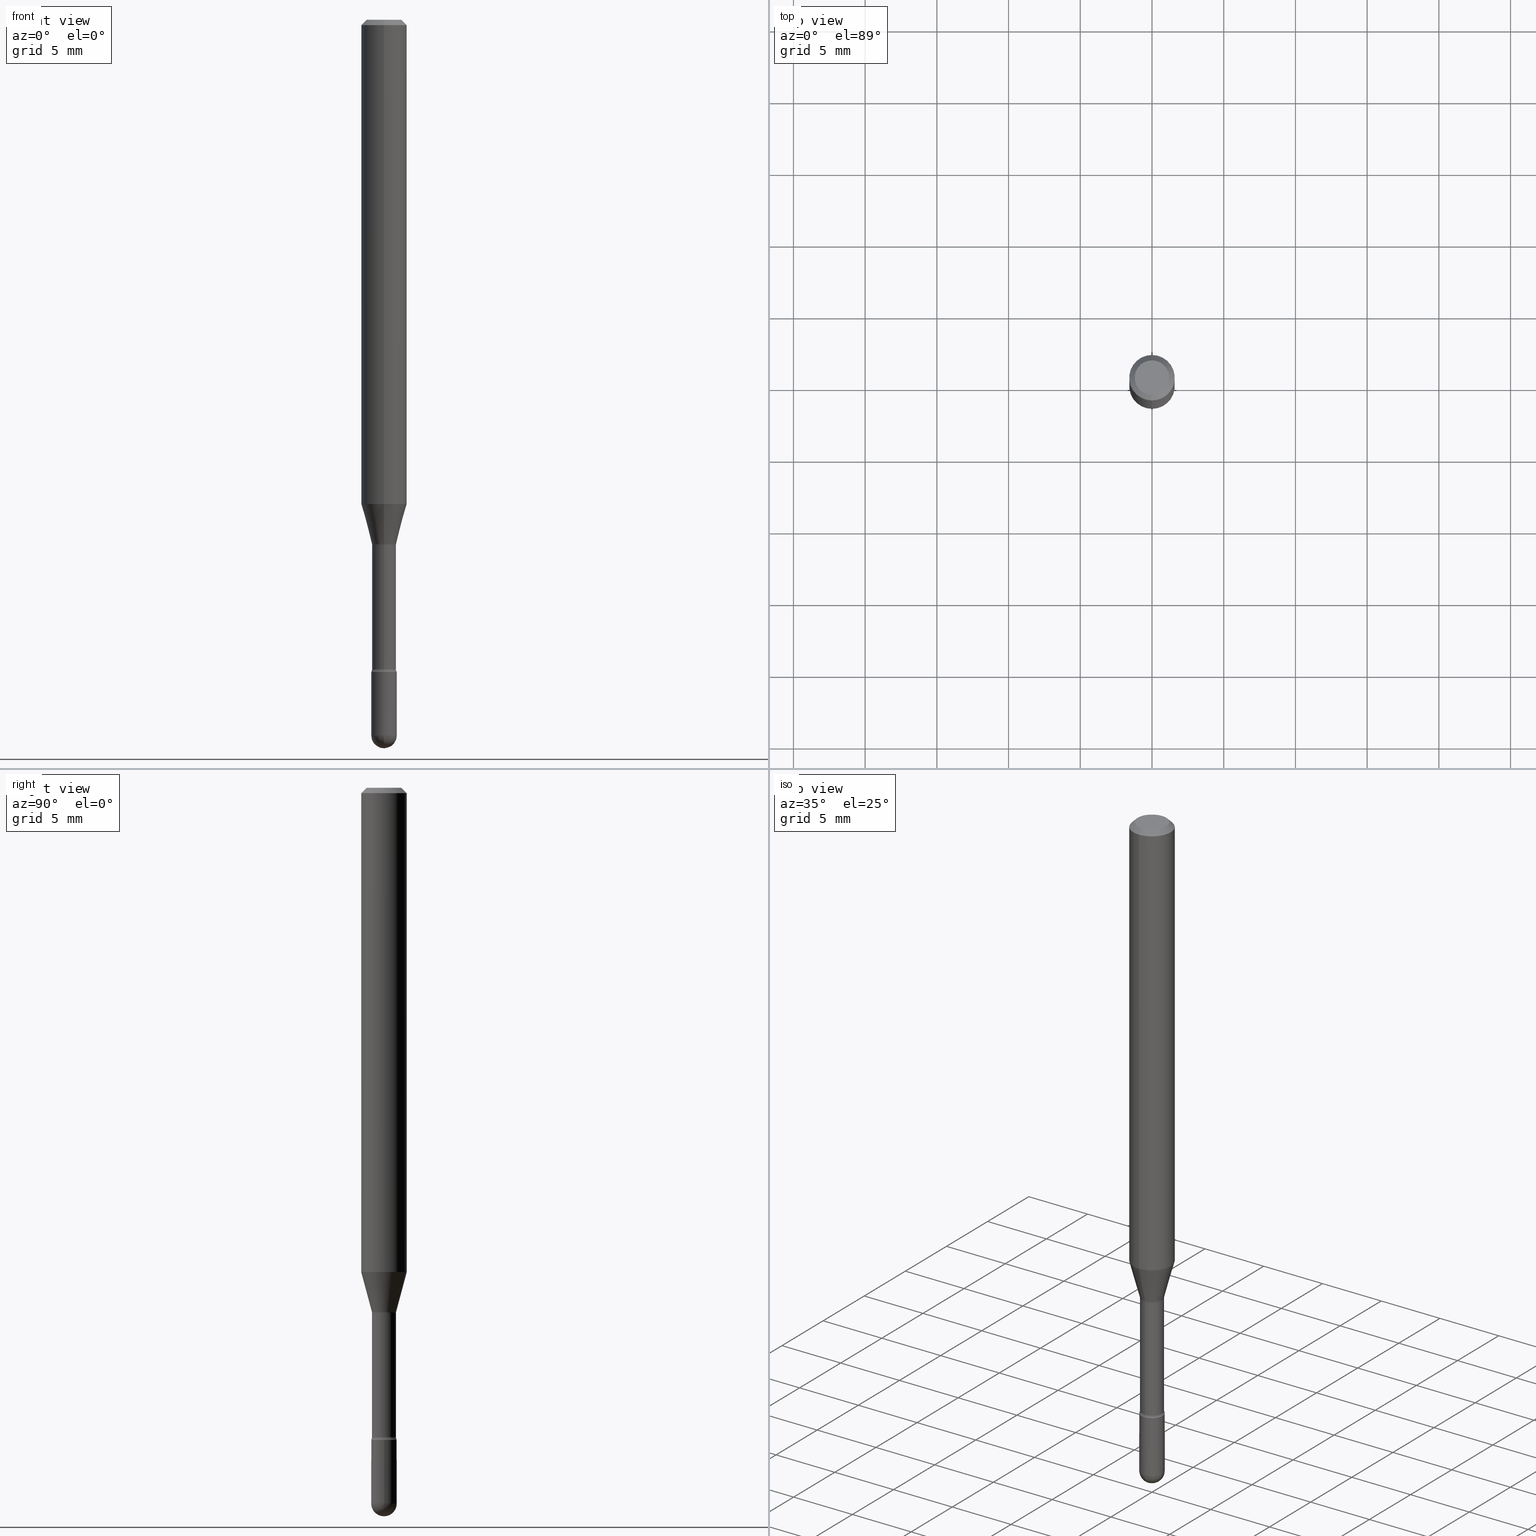
[diagram: canonical four-view strip — front | top / right | iso, engineering-drawing reading convention]
A machine part, canonical four-view strip (front | top / right | iso — engineering-drawing reading convention). The complete STEP part file that produces these views, byte-faithful:
ISO-10303-21;
HEADER;
FILE_DESCRIPTION (( 'STEP AP203' ),
    '1' );
FILE_NAME ('09815.STEP',
    '2024-04-10T01:44:51',
    ( '' ),
    ( '' ),
    'SwSTEP 2.0',
    'SolidWorks 2023',
    '' );
FILE_SCHEMA (( 'CONFIG_CONTROL_DESIGN' ));
ENDSEC;

DATA;
#1 = CARTESIAN_POINT ( 'NONE',  ( -1.169113584055446105E-44, 1.669184350826100908E-30, 4.780733988912460139E-16 ) ) ;
#2 = DATE_AND_TIME ( #399, #466 ) ;
#3 = ADVANCED_FACE ( 'NONE', ( #76 ), #390, .T. ) ;
#4 = SHAPE_DEFINITION_REPRESENTATION ( #303, #479 ) ;
#5 = CC_DESIGN_PERSON_AND_ORGANIZATION_ASSIGNMENT ( #445, #321, ( #372 ) ) ;
#6 = ORIENTED_EDGE ( 'NONE', *, *, #102, .F. ) ;
#7 = CIRCLE ( 'NONE', #554, 0.01500000000000001853 ) ;
#8 = CARTESIAN_POINT ( 'NONE',  ( 3.516851881885144057E-29, -5.021013662551617975E-15, -1.438092501787273658 ) ) ;
#9 = COORDINATED_UNIVERSAL_TIME_OFFSET ( 5, 0, .BEHIND. ) ;
#10 = DIRECTION ( 'NONE',  ( 1.000000000000000000, -7.105427357601001070E-15, 4.926315002100865368E-29 ) ) ;
#11 = ORIENTED_EDGE ( 'NONE', *, *, #199, .T. ) ;
#12 = PRODUCT_DEFINITION ( 'UNKNOWN', '', #409, #48 ) ;
#13 = DIRECTION ( 'NONE',  ( -4.851104656540964275E-15, -0.7071067811865500152, -0.7071067811865450192 ) ) ;
#14 = VERTEX_POINT ( 'NONE', #250 ) ;
#15 = CIRCLE ( 'NONE', #400, 0.01500000000000001853 ) ;
#16 = PRODUCT_RELATED_PRODUCT_CATEGORY ( 'detail', '', ( #424 ) ) ;
#17 = FACE_OUTER_BOUND ( 'NONE', #404, .T. ) ;
#18 = ORIENTED_EDGE ( 'NONE', *, *, #529, .T. ) ;
#19 = CALENDAR_DATE ( 2024, 9, 4 ) ;
#20 = DIRECTION ( 'NONE',  ( 2.445497683573463397E-29, -3.491439984779462686E-15, -1.000000000000000000 ) ) ;
#21 = ADVANCED_FACE ( 'NONE', ( #68 ), #495, .F. ) ;
#22 = EDGE_LOOP ( 'NONE', ( #323, #313, #511, #234 ) ) ;
#23 = FACE_OUTER_BOUND ( 'NONE', #474, .T. ) ;
#24 = VERTEX_POINT ( 'NONE', #345 ) ;
#25 = CIRCLE ( 'NONE', #164, 0.03500000000000000333 ) ;
#26 = DIRECTION ( 'NONE',  ( -2.445497683573463397E-29, 3.491439984779462686E-15, 1.000000000000000000 ) ) ;
#27 = CARTESIAN_POINT ( 'NONE',  ( 3.316907271900976096E-16, 0.04749999999999999362, 3.181880197381339971E-17 ) ) ;
#28 = CARTESIAN_POINT ( 'NONE',  ( 4.364351673553919652E-16, 0.06249999999999995143, -0.01500000000000030129 ) ) ;
#29 = ORIENTED_EDGE ( 'NONE', *, *, #86, .T. ) ;
#30 = APPLICATION_CONTEXT ( 'configuration controlled 3d designs of mechanical parts and assemblies' ) ;
#31 = LINE ( 'NONE', #344, #163 ) ;
#32 = AXIS2_PLACEMENT_3D ( 'NONE', #97, #453, #316 ) ;
#33 = ORIENTED_EDGE ( 'NONE', *, *, #165, .F. ) ;
#34 = DIRECTION ( 'NONE',  ( -2.445468806185136597E-29, 3.491481338843145583E-15, 1.000000000000000000 ) ) ;
#35 = ADVANCED_FACE ( 'NONE', ( #238 ), #398, .F. ) ;
#36 = APPROVAL_DATE_TIME ( #44, #411 ) ;
#37 = CARTESIAN_POINT ( 'NONE',  ( 4.377389163071394665E-29, -6.249751596529231267E-15, -1.790000000000000036 ) ) ;
#38 = CIRCLE ( 'NONE', #536, 0.03500000000000000333 ) ;
#39 = SECURITY_CLASSIFICATION_LEVEL ( 'unclassified' ) ;
#40 = CARTESIAN_POINT ( 'NONE',  ( 0.000000000000000000, 0.000000000000000000, 0.000000000000000000 ) ) ;
#41 = ORIENTED_EDGE ( 'NONE', *, *, #537, .F. ) ;
#42 = PERSON ( 'UNSPECIFIED', 'UNSPECIFIED', 'UNSPECIFIED', ('UNSPECIFIED'), ('UNSPECIFIED'), ('UNSPECIFIED') ) ;
#43 = EDGE_LOOP ( 'NONE', ( #364, #538, #209, #134 ) ) ;
#44 = DATE_AND_TIME ( #482, #254 ) ;
#45 = DIRECTION ( 'NONE',  ( 1.000000000000000000, -6.982962677686265922E-15, 4.876176775795935793E-29 ) ) ;
#46 = ADVANCED_FACE ( 'NONE', ( #162 ), #519, .T. ) ;
#47 = AXIS2_PLACEMENT_3D ( 'NONE', #207, #202, #551 ) ;
#48 = DESIGN_CONTEXT ( 'detailed design', #505, 'design' ) ;
#49 = AXIS2_PLACEMENT_3D ( 'NONE', #415, #368, #193 ) ;
#50 = ADVANCED_FACE ( 'NONE', ( #346 ), #229, .T. ) ;
#51 = EDGE_LOOP ( 'NONE', ( #405, #277, #374, #370 ) ) ;
#52 = DIRECTION ( 'NONE',  ( -2.445497683573463397E-29, 3.491439984779462686E-15, 1.000000000000000000 ) ) ;
#53 = ORIENTED_EDGE ( 'NONE', *, *, #259, .T. ) ;
#54 = DIRECTION ( 'NONE',  ( -2.445497683573463397E-29, 3.491439984779462686E-15, 1.000000000000000000 ) ) ;
#55 = ORIENTED_EDGE ( 'NONE', *, *, #433, .F. ) ;
#56 = CIRCLE ( 'NONE', #341, 0.03500000000000000333 ) ;
#57 = EDGE_CURVE ( 'NONE', #92, #367, #436, .T. ) ;
#58 = DIRECTION ( 'NONE',  ( -6.982962677686265922E-15, -1.000000000000000000, 0.000000000000000000 ) ) ;
#59 = EDGE_LOOP ( 'NONE', ( #33, #270, #546, #452 ) ) ;
#60 = CARTESIAN_POINT ( 'NONE',  ( -4.364351673553592768E-16, -0.06250000000000467681, -1.329531296095961101 ) ) ;
#61 = VERTEX_POINT ( 'NONE', #156 ) ;
#62 = CARTESIAN_POINT ( 'NONE',  ( 2.444036937190673962E-16, 0.03499999999999315464, -1.964999999999999858 ) ) ;
#63 = ORIENTED_EDGE ( 'NONE', *, *, #395, .F. ) ;
#64 = MANIFOLD_SOLID_BREP ( 'Body-Move/Copy2[2]', #307 ) ;
#65 = AXIS2_PLACEMENT_3D ( 'NONE', #471, #73, #247 ) ;
#66 = CARTESIAN_POINT ( 'NONE',  ( 4.805346204153793345E-29, -6.860760830826780393E-15, -1.964999999999999858 ) ) ;
#67 = VECTOR ( 'NONE', #13, 39.37007874015748143 ) ;
#68 = FACE_OUTER_BOUND ( 'NONE', #22, .T. ) ;
#69 = EDGE_CURVE ( 'NONE', #410, #367, #369, .T. ) ;
#70 = FACE_OUTER_BOUND ( 'NONE', #310, .T. ) ;
#71 = DIRECTION ( 'NONE',  ( -6.982962677686266711E-15, -1.000000000000000000, 0.000000000000000000 ) ) ;
#72 = EDGE_LOOP ( 'NONE', ( #429, #284 ) ) ;
#73 = DIRECTION ( 'NONE',  ( -2.445497683573463397E-29, 3.491439984779462686E-15, 1.000000000000000000 ) ) ;
#74 = CARTESIAN_POINT ( 'NONE',  ( 2.486899575160789198E-16, 0.03499999999999375833, -1.790000000000000258 ) ) ;
#75 = CARTESIAN_POINT ( 'NONE',  ( 4.805346204153793345E-29, -6.860760830826780393E-15, -1.964999999999999858 ) ) ;
#76 = FACE_OUTER_BOUND ( 'NONE', #150, .T. ) ;
#77 = CARTESIAN_POINT ( 'NONE',  ( 4.377389163071394665E-29, -6.249751596529231267E-15, -1.790000000000000036 ) ) ;
#78 = ADVANCED_FACE ( 'NONE', ( #194 ), #223, .F. ) ;
#79 = AXIS2_PLACEMENT_3D ( 'NONE', #27, #158, #491 ) ;
#80 = CARTESIAN_POINT ( 'NONE',  ( 3.251365704841097934E-29, -4.641978728205103183E-15, -1.329531296095961546 ) ) ;
#81 = CARTESIAN_POINT ( 'NONE',  ( 4.358722010466005313E-29, -6.222952657899001696E-15, -1.782345589506696193 ) ) ;
#82 = CARTESIAN_POINT ( 'NONE',  ( 4.892434153376336703E-29, -6.980819545787783111E-15, -2.000000000000000000 ) ) ;
#83 = PLANE ( 'NONE',  #252 ) ;
#84 = AXIS2_PLACEMENT_3D ( 'NONE', #1, #545, #182 ) ;
#85 = LOCAL_TIME ( 21, 44, 51.00000000000000000, #124 ) ;
#86 = EDGE_CURVE ( 'NONE', #443, #130, #544, .T. ) ;
#87 = DIRECTION ( 'NONE',  ( -2.445497683573463397E-29, 3.491439984779462686E-15, 1.000000000000000000 ) ) ;
#88 = PERSON_AND_ORGANIZATION ( #42, #380 ) ;
#89 = CARTESIAN_POINT ( 'NONE',  ( -2.297394720958349133E-16, -0.03290000000000627145, -1.782345589506696193 ) ) ;
#90 = EDGE_CURVE ( 'NONE', #106, #130, #383, .T. ) ;
#91 = DIRECTION ( 'NONE',  ( 1.000000000000000000, -6.982962677686265922E-15, 4.876176775795936353E-29 ) ) ;
#92 = VERTEX_POINT ( 'NONE', #82 ) ;
#93 = AXIS2_PLACEMENT_3D ( 'NONE', #153, #425, #336 ) ;
#94 = EDGE_LOOP ( 'NONE', ( #439, #188, #29, #174 ) ) ;
#95 = ORIENTED_EDGE ( 'NONE', *, *, #337, .T. ) ;
#96 = ADVANCED_FACE ( 'NONE', ( #347 ), #514, .T. ) ;
#97 = CARTESIAN_POINT ( 'NONE',  ( 4.377440853596499335E-29, -6.249677572755238571E-15, -1.790000000000000036 ) ) ;
#98 = VERTEX_POINT ( 'NONE', #430 ) ;
#99 = AXIS2_PLACEMENT_3D ( 'NONE', #114, #377, #147 ) ;
#100 = LINE ( 'NONE', #500, #487 ) ;
#101 = VERTEX_POINT ( 'NONE', #562 ) ;
#102 = EDGE_CURVE ( 'NONE', #477, #106, #523, .T. ) ;
#103 = ORIENTED_EDGE ( 'NONE', *, *, #472, .F. ) ;
#104 = EDGE_CURVE ( 'NONE', #101, #535, #190, .T. ) ;
#105 = CARTESIAN_POINT ( 'NONE',  ( -2.333085523452890459E-16, -0.03341111260566893143, -1.438092501787273658 ) ) ;
#106 = VERTEX_POINT ( 'NONE', #393 ) ;
#107 = FACE_OUTER_BOUND ( 'NONE', #413, .T. ) ;
#108 = AXIS2_PLACEMENT_3D ( 'NONE', #135, #449, #412 ) ;
#109 = CC_DESIGN_APPROVAL ( #463, ( #12 ) ) ;
#110 = DIRECTION ( 'NONE',  ( -2.445468806185136877E-29, 3.491481338843145188E-15, 1.000000000000000000 ) ) ;
#111 = DIRECTION ( 'NONE',  ( 1.839019923739594793E-15, 0.2588190451025241812, 0.9659258262890673130 ) ) ;
#112 = LINE ( 'NONE', #28, #224 ) ;
#113 = DIRECTION ( 'NONE',  ( -2.445497683573463117E-29, 3.491439984779462686E-15, 1.000000000000000000 ) ) ;
#114 = CARTESIAN_POINT ( 'NONE',  ( 4.805346204153793345E-29, -6.860760830826780393E-15, -1.964999999999999858 ) ) ;
#115 = APPROVAL_ROLE ( '' ) ;
#116 = TOROIDAL_SURFACE ( 'NONE', #191, 0.04789999999999999813, 0.01500000000000001506 ) ;
#117 = EDGE_LOOP ( 'NONE', ( #331, #218, #246, #144 ) ) ;
#118 = CARTESIAN_POINT ( 'NONE',  ( 2.374002335562071771E-16, 0.03341111260565889085, -1.438092501787273658 ) ) ;
#119 = LINE ( 'NONE', #125, #420 ) ;
#120 = FACE_OUTER_BOUND ( 'NONE', #275, .T. ) ;
#121 = DIRECTION ( 'NONE',  ( -2.445497683573463397E-29, 3.491439984779462686E-15, 1.000000000000000000 ) ) ;
#122 = AXIS2_PLACEMENT_3D ( 'NONE', #258, #245, #242 ) ;
#123 = CC_DESIGN_APPROVAL ( #205, ( #372 ) ) ;
#124 = COORDINATED_UNIVERSAL_TIME_OFFSET ( 5, 0, .BEHIND. ) ;
#125 = CARTESIAN_POINT ( 'NONE',  ( 0.03500000000000000333, -2.444036937190193250E-16, 1.706661871528577808E-30 ) ) ;
#126 = ADVANCED_FACE ( 'NONE', ( #167 ), #175, .T. ) ;
#127 = CARTESIAN_POINT ( 'NONE',  ( -4.364351673553916201E-16, -0.06250000000000000000, 6.962883979399624318E-16 ) ) ;
#128 = APPROVAL_DATE_TIME ( #137, #205 ) ;
#129 = CARTESIAN_POINT ( 'NONE',  ( 3.668246525360215467E-31, -5.237159977169223045E-17, -0.01500000000000008271 ) ) ;
#130 = VERTEX_POINT ( 'NONE', #212 ) ;
#131 = AXIS2_PLACEMENT_3D ( 'NONE', #200, #516, #149 ) ;
#132 = AXIS2_PLACEMENT_3D ( 'NONE', #80, #343, #146 ) ;
#133 = ADVANCED_FACE ( 'NONE', ( #208 ), #378, .F. ) ;
#134 = ORIENTED_EDGE ( 'NONE', *, *, #305, .F. ) ;
#135 = CARTESIAN_POINT ( 'NONE',  ( 0.000000000000000000, 0.000000000000000000, 0.000000000000000000 ) ) ;
#136 = ORIENTED_EDGE ( 'NONE', *, *, #280, .F. ) ;
#137 = DATE_AND_TIME ( #533, #240 ) ;
#138 = DIRECTION ( 'NONE',  ( 7.105427357601001859E-15, 1.000000000000000000, 0.000000000000000000 ) ) ;
#139 = ORIENTED_EDGE ( 'NONE', *, *, #165, .T. ) ;
#140 = AXIS2_PLACEMENT_3D ( 'NONE', #75, #403, #232 ) ;
#141 = EDGE_CURVE ( 'NONE', #130, #443, #239, .T. ) ;
#142 = CIRCLE ( 'NONE', #269, 0.03341111260566390767 ) ;
#143 = PERSON_AND_ORGANIZATION ( #42, #380 ) ;
#144 = ORIENTED_EDGE ( 'NONE', *, *, #333, .F. ) ;
#145 = EDGE_CURVE ( 'NONE', #410, #492, #31, .T. ) ;
#146 = DIRECTION ( 'NONE',  ( -6.982962677686265922E-15, -1.000000000000000000, 4.370956789862821150E-15 ) ) ;
#147 = DIRECTION ( 'NONE',  ( 6.982962677686265922E-15, 1.000000000000000000, 0.000000000000000000 ) ) ;
#148 = PERSON_AND_ORGANIZATION ( #42, #380 ) ;
#149 = DIRECTION ( 'NONE',  ( -6.982962677686265922E-15, -1.000000000000000000, 3.491439984779462292E-15 ) ) ;
#150 = EDGE_LOOP ( 'NONE', ( #6, #213, #11, #41 ) ) ;
#151 = VECTOR ( 'NONE', #111, 39.37007874015748854 ) ;
#152 = AXIS2_PLACEMENT_3D ( 'NONE', #397, #121, #308 ) ;
#153 = CARTESIAN_POINT ( 'NONE',  ( 3.668246525360215467E-31, -5.237159977169223045E-17, -0.01500000000000008271 ) ) ;
#154 = DIRECTION ( 'NONE',  ( -6.982962677686265922E-15, -1.000000000000000000, 3.483106191921935554E-15 ) ) ;
#155 = CARTESIAN_POINT ( 'NONE',  ( 3.526304362048192117E-29, -5.034628061512207584E-15, -1.441974787463811136 ) ) ;
#156 = CARTESIAN_POINT ( 'NONE',  ( -3.773273898774340269E-16, -0.04749999999999999362, 8.309440288745416751E-17 ) ) ;
#157 = DIRECTION ( 'NONE',  ( 0.000000000000000000, 0.000000000000000000, 1.000000000000000000 ) ) ;
#158 = DIRECTION ( 'NONE',  ( 2.445497683573463117E-29, -3.491439984779462686E-15, -1.000000000000000000 ) ) ;
#159 = DIRECTION ( 'NONE',  ( -6.982962677686265922E-15, -1.000000000000000000, 3.491439984779462292E-15 ) ) ;
#160 = DIRECTION ( 'NONE',  ( -2.445497683573463397E-29, 3.491439984779462686E-15, 1.000000000000000000 ) ) ;
#161 = CARTESIAN_POINT ( 'NONE',  ( 3.668246525360215467E-31, -5.237159977169223045E-17, -0.01500000000000008271 ) ) ;
#162 = FACE_OUTER_BOUND ( 'NONE', #43, .T. ) ;
#163 = VECTOR ( 'NONE', #110, 39.37007874015748143 ) ;
#164 = AXIS2_PLACEMENT_3D ( 'NONE', #66, #34, #428 ) ;
#165 = EDGE_CURVE ( 'NONE', #24, #282, #557, .T. ) ;
#166 = DIRECTION ( 'NONE',  ( -2.445468806185136597E-29, 3.491481338843145583E-15, 1.000000000000000000 ) ) ;
#167 = FACE_OUTER_BOUND ( 'NONE', #236, .T. ) ;
#168 = VERTEX_POINT ( 'NONE', #563 ) ;
#169 = CARTESIAN_POINT ( 'NONE',  ( 2.337685600651166350E-16, 0.03289999999999496105, -1.441974787463811136 ) ) ;
#170 = AXIS2_PLACEMENT_3D ( 'NONE', #497, #227, #187 ) ;
#171 = ADVANCED_FACE ( 'NONE', ( #334 ), #296, .T. ) ;
#172 = DIRECTION ( 'NONE',  ( -6.982962677686265922E-15, -1.000000000000000000, 0.000000000000000000 ) ) ;
#173 = CARTESIAN_POINT ( 'NONE',  ( 3.516851881885144057E-29, -5.021013662551617975E-15, -1.438092501787273658 ) ) ;
#174 = ORIENTED_EDGE ( 'NONE', *, *, #506, .F. ) ;
#175 = CYLINDRICAL_SURFACE ( 'NONE', #131, 0.06250000000000000000 ) ;
#176 = CIRCLE ( 'NONE', #122, 0.04749999999999999362 ) ;
#177 = ORIENTED_EDGE ( 'NONE', *, *, #104, .T. ) ;
#178 = CIRCLE ( 'NONE', #435, 0.03290000000000004726 ) ;
#179 = AXIS2_PLACEMENT_3D ( 'NONE', #385, #381, #373 ) ;
#180 = APPROVAL_PERSON_ORGANIZATION ( #143, #205, #184 ) ;
#181 = EDGE_CURVE ( 'NONE', #24, #325, #178, .T. ) ;
#182 = DIRECTION ( 'NONE',  ( -6.982962677686265922E-15, -1.000000000000000000, 3.491439984779462292E-15 ) ) ;
#183 = VERTEX_POINT ( 'NONE', #206 ) ;
#184 = APPROVAL_ROLE ( '' ) ;
#185 = CARTESIAN_POINT ( 'NONE',  ( 3.251365704841097934E-29, -4.641978728205103183E-15, -1.329531296095961546 ) ) ;
#186 = VERTEX_POINT ( 'NONE', #509 ) ;
#187 = DIRECTION ( 'NONE',  ( 7.105427357600998703E-15, 1.000000000000000000, 0.000000000000000000 ) ) ;
#188 = ORIENTED_EDGE ( 'NONE', *, *, #426, .T. ) ;
#189 = EDGE_CURVE ( 'NONE', #183, #61, #176, .T. ) ;
#190 = CIRCLE ( 'NONE', #65, 0.03500000000000000333 ) ;
#191 = AXIS2_PLACEMENT_3D ( 'NONE', #422, #547, #289 ) ;
#192 =( GEOMETRIC_REPRESENTATION_CONTEXT ( 3 ) GLOBAL_UNCERTAINTY_ASSIGNED_CONTEXT ( ( #294 ) ) GLOBAL_UNIT_ASSIGNED_CONTEXT ( ( #295, #299, #248 ) ) REPRESENTATION_CONTEXT ( 'NONE', 'WORKASPACE' ) );
#193 = DIRECTION ( 'NONE',  ( -6.982962677686266711E-15, -1.000000000000000000, 3.491439984779464658E-15 ) ) ;
#194 = FACE_OUTER_BOUND ( 'NONE', #498, .T. ) ;
#195 = DIRECTION ( 'NONE',  ( -2.445468806185136597E-29, 3.491481338843145583E-15, 1.000000000000000000 ) ) ;
#196 = ORIENTED_EDGE ( 'NONE', *, *, #181, .F. ) ;
#197 = DIRECTION ( 'NONE',  ( -2.445497683573463397E-29, 3.491439984779462686E-15, 1.000000000000000000 ) ) ;
#198 = CARTESIAN_POINT ( 'NONE',  ( -0.03500000000000000333, -6.306566256161970939E-15, -1.790000000000000036 ) ) ;
#199 = EDGE_CURVE ( 'NONE', #168, #484, #432, .T. ) ;
#200 = CARTESIAN_POINT ( 'NONE',  ( -1.169113584055446105E-44, 1.669184350826100908E-30, 4.780733988912460139E-16 ) ) ;
#201 = DIRECTION ( 'NONE',  ( -2.445497683573463397E-29, 3.491439984779462686E-15, 1.000000000000000000 ) ) ;
#202 = DIRECTION ( 'NONE',  ( -2.445497683573463397E-29, 3.491439984779462686E-15, 1.000000000000000000 ) ) ;
#203 = CLOSED_SHELL ( 'NONE', ( #221, #171, #326, #46, #442 ) ) ;
#204 = AXIS2_PLACEMENT_3D ( 'NONE', #396, #302, #483 ) ;
#205 = APPROVAL ( #271, 'UNSPECIFIED' ) ;
#206 = CARTESIAN_POINT ( 'NONE',  ( 3.840629472727447874E-16, 0.04749999999999999362, -2.485923956665947374E-16 ) ) ;
#207 = CARTESIAN_POINT ( 'NONE',  ( 3.668246525360215467E-31, -5.237159977169223045E-17, -0.01500000000000008271 ) ) ;
#208 = FACE_OUTER_BOUND ( 'NONE', #72, .T. ) ;
#209 = ORIENTED_EDGE ( 'NONE', *, *, #549, .F. ) ;
#210 = CARTESIAN_POINT ( 'NONE',  ( 4.358670540980284355E-29, -6.223026365132014624E-15, -1.782345589506696193 ) ) ;
#211 = ADVANCED_FACE ( 'NONE', ( #461 ), #376, .F. ) ;
#212 = CARTESIAN_POINT ( 'NONE',  ( 4.440892098500952553E-16, 0.06249999999999993755, -0.01500000000000030129 ) ) ;
#213 = ORIENTED_EDGE ( 'NONE', *, *, #401, .T. ) ;
#214 = DIRECTION ( 'NONE',  ( -7.105427357601001859E-15, -1.000000000000000000, 0.000000000000000000 ) ) ;
#215 = PERSON_AND_ORGANIZATION ( #42, #380 ) ;
#216 = FACE_OUTER_BOUND ( 'NONE', #117, .T. ) ;
#217 = CC_DESIGN_APPROVAL ( #411, ( #409 ) ) ;
#218 = ORIENTED_EDGE ( 'NONE', *, *, #90, .T. ) ;
#219 = CARTESIAN_POINT ( 'NONE',  ( 4.377389163071394665E-29, -6.249751596529231267E-15, -1.790000000000000036 ) ) ;
#220 = EDGE_LOOP ( 'NONE', ( #291, #494 ) ) ;
#221 = ADVANCED_FACE ( 'NONE', ( #120 ), #486, .T. ) ;
#222 = FACE_OUTER_BOUND ( 'NONE', #306, .T. ) ;
#223 = TOROIDAL_SURFACE ( 'NONE', #317, 0.04790000000000007446, 0.01500000000000002373 ) ;
#224 = VECTOR ( 'NONE', #473, 39.37007874015748143 ) ;
#225 = DIRECTION ( 'NONE',  ( -2.445468806185136597E-29, 3.491481338843145583E-15, 1.000000000000000000 ) ) ;
#226 = ORIENTED_EDGE ( 'NONE', *, *, #272, .F. ) ;
#227 = DIRECTION ( 'NONE',  ( 1.000000000000000000, -7.105427357601001070E-15, 4.926315002100865368E-29 ) ) ;
#228 = ORIENTED_EDGE ( 'NONE', *, *, #90, .F. ) ;
#229 = CONICAL_SURFACE ( 'NONE', #478, 0.03341111260566390767, 0.2617993877991495189 ) ;
#230 = ORIENTED_EDGE ( 'NONE', *, *, #145, .T. ) ;
#231 = CIRCLE ( 'NONE', #566, 0.01500000000000001853 ) ;
#232 = DIRECTION ( 'NONE',  ( 1.000000000000000000, -6.982962677686276966E-15, 0.000000000000000000 ) ) ;
#233 = CARTESIAN_POINT ( 'NONE',  ( -0.03500000000000000333, -6.306566256161970939E-15, -1.964999999999999858 ) ) ;
#234 = ORIENTED_EDGE ( 'NONE', *, *, #293, .F. ) ;
#235 = CYLINDRICAL_SURFACE ( 'NONE', #49, 0.03290000000000001951 ) ;
#236 = EDGE_LOOP ( 'NONE', ( #228, #339, #243, #379 ) ) ;
#237 = CARTESIAN_POINT ( 'NONE',  ( 3.403499704291320534E-16, 0.04789999999999385027, -1.782345589506696415 ) ) ;
#238 = FACE_OUTER_BOUND ( 'NONE', #459, .T. ) ;
#239 = CIRCLE ( 'NONE', #418, 0.06250000000000000000 ) ;
#240 = LOCAL_TIME ( 21, 44, 51.00000000000000000, #9 ) ;
#241 =( LENGTH_UNIT ( ) NAMED_UNIT ( * ) SI_UNIT ( $, .METRE. ) );
#242 = DIRECTION ( 'NONE',  ( -6.982962677686266711E-15, -1.000000000000000000, 3.491439984779463081E-15 ) ) ;
#243 = ORIENTED_EDGE ( 'NONE', *, *, #333, .T. ) ;
#244 = APPROVAL_STATUS ( 'not_yet_approved' ) ;
#245 = DIRECTION ( 'NONE',  ( -2.445497683573463397E-29, 3.491439984779462686E-15, 1.000000000000000000 ) ) ;
#246 = ORIENTED_EDGE ( 'NONE', *, *, #86, .F. ) ;
#247 = DIRECTION ( 'NONE',  ( -6.982962677686265922E-15, -1.000000000000000000, 0.000000000000000000 ) ) ;
#248 =( NAMED_UNIT ( * ) SI_UNIT ( $, .STERADIAN. ) SOLID_ANGLE_UNIT ( ) );
#249 = DIRECTION ( 'NONE',  ( -2.445497683573463397E-29, 3.491439984779462686E-15, 1.000000000000000000 ) ) ;
#250 = CARTESIAN_POINT ( 'NONE',  ( 0.03500000000000000333, -6.799659907397025402E-15, -1.964999999999999858 ) ) ;
#251 = MANIFOLD_SOLID_BREP ( 'Body-Move/Copy2[1]', #203 ) ;
#252 = AXIS2_PLACEMENT_3D ( 'NONE', #37, #268, #45 ) ;
#253 = DIRECTION ( 'NONE',  ( 1.000000000000000000, -6.982962677686276966E-15, 0.000000000000000000 ) ) ;
#254 = LOCAL_TIME ( 21, 44, 51.00000000000000000, #525 ) ;
#255 = EDGE_CURVE ( 'NONE', #325, #24, #427, .T. ) ;
#256 = ORIENTED_EDGE ( 'NONE', *, *, #506, .T. ) ;
#257 = DIRECTION ( 'NONE',  ( -6.982962677686266711E-15, -1.000000000000000000, 3.491439984779464658E-15 ) ) ;
#258 = CARTESIAN_POINT ( 'NONE',  ( 2.023762844999115351E-45, -2.888933844171342410E-31, -8.274899638957028495E-17 ) ) ;
#259 = EDGE_CURVE ( 'NONE', #419, #410, #56, .T. ) ;
#260 = PERSON_AND_ORGANIZATION_ROLE ( 'creator' ) ;
#261 = AXIS2_PLACEMENT_3D ( 'NONE', #155, #26, #548 ) ;
#262 = PERSON_AND_ORGANIZATION ( #42, #380 ) ;
#263 = VECTOR ( 'NONE', #285, 39.37007874015748854 ) ;
#264 = CONICAL_SURFACE ( 'NONE', #93, 0.06250000000000000000, 0.7853981633974483900 ) ;
#265 = DIRECTION ( 'NONE',  ( 1.000000000000000000, -6.982962677686276966E-15, 0.000000000000000000 ) ) ;
#266 = ORIENTED_EDGE ( 'NONE', *, *, #433, .T. ) ;
#267 = APPROVAL_ROLE ( '' ) ;
#268 = DIRECTION ( 'NONE',  ( -2.438088387897960049E-29, 3.491481338843145188E-15, 1.000000000000000000 ) ) ;
#269 = AXIS2_PLACEMENT_3D ( 'NONE', #173, #502, #58 ) ;
#270 = ORIENTED_EDGE ( 'NONE', *, *, #181, .T. ) ;
#271 = APPROVAL_STATUS ( 'not_yet_approved' ) ;
#272 = EDGE_CURVE ( 'NONE', #98, #282, #371, .T. ) ;
#273 = ORIENTED_EDGE ( 'NONE', *, *, #255, .F. ) ;
#274 = CARTESIAN_POINT ( 'NONE',  ( -2.486899575159870668E-16, -0.03500000000000687284, -1.964999999999999858 ) ) ;
#275 = EDGE_LOOP ( 'NONE', ( #53, #230, #136, #394, #540 ) ) ;
#276 = CC_DESIGN_PERSON_AND_ORGANIZATION_ASSIGNMENT ( #438, #260, ( #409 ) ) ;
#277 = ORIENTED_EDGE ( 'NONE', *, *, #57, .T. ) ;
#278 = CIRCLE ( 'NONE', #32, 0.03500000000000000333 ) ;
#279 = AXIS2_PLACEMENT_3D ( 'NONE', #556, #157, #510 ) ;
#280 = EDGE_CURVE ( 'NONE', #186, #492, #454, .T. ) ;
#281 = CARTESIAN_POINT ( 'NONE',  ( -4.364351673553912750E-16, -0.06250000000000005551, -0.01499999999999986587 ) ) ;
#282 = VERTEX_POINT ( 'NONE', #169 ) ;
#283 = CARTESIAN_POINT ( 'NONE',  ( 2.023762844999115351E-45, -2.888933844171342410E-31, -8.274899638957028495E-17 ) ) ;
#284 = ORIENTED_EDGE ( 'NONE', *, *, #467, .F. ) ;
#285 = DIRECTION ( 'NONE',  ( -1.807323732225324617E-15, -0.2588190451025174088, 0.9659258262890690894 ) ) ;
#286 = DIRECTION ( 'NONE',  ( -6.982962677686265922E-15, -1.000000000000000000, 0.000000000000000000 ) ) ;
#287 = AXIS2_PLACEMENT_3D ( 'NONE', #338, #469, #290 ) ;
#288 = AXIS2_PLACEMENT_3D ( 'NONE', #283, #330, #507 ) ;
#289 = DIRECTION ( 'NONE',  ( -6.982962677686265133E-15, -1.000000000000000000, 3.491439984779462686E-15 ) ) ;
#290 = DIRECTION ( 'NONE',  ( 6.982962677686265922E-15, 1.000000000000000000, 0.000000000000000000 ) ) ;
#291 = ORIENTED_EDGE ( 'NONE', *, *, #189, .T. ) ;
#292 = CARTESIAN_POINT ( 'NONE',  ( 4.440892098500625669E-16, 0.06250000000000000000, 2.598583998425296453E-16 ) ) ;
#293 = EDGE_CURVE ( 'NONE', #168, #98, #231, .T. ) ;
#294 = UNCERTAINTY_MEASURE_WITH_UNIT (LENGTH_MEASURE( 1.000000000000000082E-05 ), #295, 'distance_accuracy_value', 'NONE');
#295 =( CONVERSION_BASED_UNIT ( 'INCH', #460 ) LENGTH_UNIT ( ) NAMED_UNIT ( #384 ) );
#296 = SPHERICAL_SURFACE ( 'NONE', #287, 0.03500000000000001721 ) ;
#297 = ORIENTED_EDGE ( 'NONE', *, *, #300, .T. ) ;
#298 = AXIS2_PLACEMENT_3D ( 'NONE', #355, #87, #434 ) ;
#299 =( NAMED_UNIT ( * ) PLANE_ANGLE_UNIT ( ) SI_UNIT ( $, .RADIAN. ) );
#300 = EDGE_CURVE ( 'NONE', #14, #186, #119, .T. ) ;
#301 = DIRECTION ( 'NONE',  ( -6.982962677686265922E-15, -1.000000000000000000, 3.491439984779462686E-15 ) ) ;
#302 = DIRECTION ( 'NONE',  ( -2.445468806185136597E-29, 3.491481338843145583E-15, 1.000000000000000000 ) ) ;
#303 = PRODUCT_DEFINITION_SHAPE ( 'NONE', 'NONE',  #12 ) ;
#304 = CARTESIAN_POINT ( 'NONE',  ( 4.805346204153793345E-29, -6.860760830826780393E-15, -1.964999999999999858 ) ) ;
#305 = EDGE_CURVE ( 'NONE', #367, #14, #391, .T. ) ;
#306 = EDGE_LOOP ( 'NONE', ( #457, #18 ) ) ;
#307 = CLOSED_SHELL ( 'NONE', ( #21, #490, #35, #458, #361, #50, #3, #126, #542, #211, #133, #78, #96, #512 ) ) ;
#308 = DIRECTION ( 'NONE',  ( -6.982962677686266711E-15, -1.000000000000000000, 0.000000000000000000 ) ) ;
#309 = APPROVAL_PERSON_ORGANIZATION ( #88, #411, #267 ) ;
#310 = EDGE_LOOP ( 'NONE', ( #402, #501, #256, #365 ) ) ;
#311 = APPROVAL_STATUS ( 'not_yet_approved' ) ;
#312 = DIRECTION ( 'NONE',  ( -2.445468806185136877E-29, 3.491481338843145188E-15, 1.000000000000000000 ) ) ;
#313 = ORIENTED_EDGE ( 'NONE', *, *, #406, .T. ) ;
#314 = DIRECTION ( 'NONE',  ( -1.000000000000000000, 6.982962677686265922E-15, -4.883557194083112340E-29 ) ) ;
#315 = ORIENTED_EDGE ( 'NONE', *, *, #337, .F. ) ;
#316 = DIRECTION ( 'NONE',  ( -6.982962677686265922E-15, -1.000000000000000000, 0.000000000000000000 ) ) ;
#317 = AXIS2_PLACEMENT_3D ( 'NONE', #210, #197, #559 ) ;
#318 = AXIS2_PLACEMENT_3D ( 'NONE', #515, #375, #332 ) ;
#319 = ORIENTED_EDGE ( 'NONE', *, *, #272, .T. ) ;
#320 = CC_DESIGN_SECURITY_CLASSIFICATION ( #372, ( #409 ) ) ;
#321 = PERSON_AND_ORGANIZATION_ROLE ( 'classification_officer' ) ;
#322 = CC_DESIGN_DATE_AND_TIME_ASSIGNMENT ( #414, #543, ( #372 ) ) ;
#323 = ORIENTED_EDGE ( 'NONE', *, *, #401, .F. ) ;
#324 = DIRECTION ( 'NONE',  ( 6.982962677686265922E-15, 1.000000000000000000, -3.483106191921935554E-15 ) ) ;
#325 = VERTEX_POINT ( 'NONE', #89 ) ;
#326 = ADVANCED_FACE ( 'NONE', ( #222 ), #83, .T. ) ;
#327 = FACE_OUTER_BOUND ( 'NONE', #94, .T. ) ;
#328 = ORIENTED_EDGE ( 'NONE', *, *, #102, .T. ) ;
#329 = AXIS2_PLACEMENT_3D ( 'NONE', #185, #52, #366 ) ;
#330 = DIRECTION ( 'NONE',  ( -2.445497683573463397E-29, 3.491439984779462686E-15, 1.000000000000000000 ) ) ;
#331 = ORIENTED_EDGE ( 'NONE', *, *, #472, .T. ) ;
#332 = DIRECTION ( 'NONE',  ( -6.982962677686265133E-15, -1.000000000000000000, 0.000000000000000000 ) ) ;
#333 = EDGE_CURVE ( 'NONE', #484, #443, #447, .T. ) ;
#334 = FACE_OUTER_BOUND ( 'NONE', #51, .T. ) ;
#335 = CARTESIAN_POINT ( 'NONE',  ( 3.516851881885144057E-29, -5.021013662551617975E-15, -1.438092501787273658 ) ) ;
#336 = DIRECTION ( 'NONE',  ( 6.982962677686265922E-15, 1.000000000000000000, -3.483106191921935554E-15 ) ) ;
#337 = EDGE_CURVE ( 'NONE', #168, #477, #446, .T. ) ;
#338 = CARTESIAN_POINT ( 'NONE',  ( 4.805346204153793345E-29, -6.860760830826780393E-15, -1.964999999999999858 ) ) ;
#339 = ORIENTED_EDGE ( 'NONE', *, *, #537, .T. ) ;
#340 = AXIS2_PLACEMENT_3D ( 'NONE', #550, #389, #214 ) ;
#341 = AXIS2_PLACEMENT_3D ( 'NONE', #304, #488, #265 ) ;
#342 = APPROVAL_PERSON_ORGANIZATION ( #521, #463, #115 ) ;
#343 = DIRECTION ( 'NONE',  ( -2.445497683573463397E-29, 3.491439984779462686E-15, 1.000000000000000000 ) ) ;
#344 = CARTESIAN_POINT ( 'NONE',  ( -0.03500000000000000333, 2.486899575160350887E-16, -1.721627281589217108E-30 ) ) ;
#345 = CARTESIAN_POINT ( 'NONE',  ( 2.412292587905979007E-16, 0.03289999999999382307, -1.782345589506696193 ) ) ;
#346 = FACE_OUTER_BOUND ( 'NONE', #499, .T. ) ;
#347 = FACE_OUTER_BOUND ( 'NONE', #59, .T. ) ;
#348 = EDGE_CURVE ( 'NONE', #325, #101, #15, .T. ) ;
#349 = APPLICATION_PROTOCOL_DEFINITION ( 'international standard', 'config_control_design', 1994, #505 ) ;
#350 = AXIS2_PLACEMENT_3D ( 'NONE', #476, #113, #301 ) ;
#351 = AXIS2_PLACEMENT_3D ( 'NONE', #40, #225, #91 ) ;
#352 = DATE_TIME_ROLE ( 'creation_date' ) ;
#353 = PERSON_AND_ORGANIZATION_ROLE ( 'design_supplier' ) ;
#354 = DIRECTION ( 'NONE',  ( -2.445497683573463397E-29, 3.491439984779462686E-15, 1.000000000000000000 ) ) ;
#355 = CARTESIAN_POINT ( 'NONE',  ( 3.526346002514087229E-29, -5.034568429995017918E-15, -1.441974787463811136 ) ) ;
#356 = AXIS2_PLACEMENT_3D ( 'NONE', #517, #558, #159 ) ;
#357 = CIRCLE ( 'NONE', #329, 0.06250000000000000000 ) ;
#358 = CARTESIAN_POINT ( 'NONE',  ( -3.344839122611368617E-16, -0.04790000000000502883, -1.441974787463810914 ) ) ;
#359 = LOCAL_TIME ( 21, 44, 51.00000000000000000, #539 ) ;
#360 = CARTESIAN_POINT ( 'NONE',  ( -3.344839122611290224E-16, -0.04790000000000629171, -1.782345589506695971 ) ) ;
#361 = ADVANCED_FACE ( 'NONE', ( #216 ), #392, .T. ) ;
#362 = CYLINDRICAL_SURFACE ( 'NONE', #108, 0.03500000000000000333 ) ;
#363 = AXIS2_PLACEMENT_3D ( 'NONE', #219, #166, #441 ) ;
#364 = ORIENTED_EDGE ( 'NONE', *, *, #57, .F. ) ;
#365 = ORIENTED_EDGE ( 'NONE', *, *, #141, .T. ) ;
#366 = DIRECTION ( 'NONE',  ( -6.982962677686265922E-15, -1.000000000000000000, 4.370956789862821150E-15 ) ) ;
#367 = VERTEX_POINT ( 'NONE', #274 ) ;
#368 = DIRECTION ( 'NONE',  ( -2.445497683573463397E-29, 3.491439984779462686E-15, 1.000000000000000000 ) ) ;
#369 = CIRCLE ( 'NONE', #140, 0.03500000000000000333 ) ;
#370 = ORIENTED_EDGE ( 'NONE', *, *, #259, .F. ) ;
#371 = CIRCLE ( 'NONE', #298, 0.03289999999999999869 ) ;
#372 = SECURITY_CLASSIFICATION ( '', '', #39 ) ;
#373 = DIRECTION ( 'NONE',  ( 6.982962677686265922E-15, 1.000000000000000000, 0.000000000000000000 ) ) ;
#374 = ORIENTED_EDGE ( 'NONE', *, *, #69, .F. ) ;
#375 = DIRECTION ( 'NONE',  ( -2.445497683573463397E-29, 3.491439984779462686E-15, 1.000000000000000000 ) ) ;
#376 = PLANE ( 'NONE',  #79 ) ;
#377 = DIRECTION ( 'NONE',  ( -1.000000000000000000, 6.982962677686265922E-15, -4.883557194083112340E-29 ) ) ;
#378 = PLANE ( 'NONE',  #350 ) ;
#379 = ORIENTED_EDGE ( 'NONE', *, *, #141, .F. ) ;
#380 = ORGANIZATION ( 'UNSPECIFIED', 'UNSPECIFIED', '' ) ;
#381 = DIRECTION ( 'NONE',  ( 1.000000000000000000, -6.982962677686265922E-15, 4.883557194083112340E-29 ) ) ;
#382 = EDGE_CURVE ( 'NONE', #61, #183, #503, .T. ) ;
#383 = LINE ( 'NONE', #292, #444 ) ;
#384 = DIMENSIONAL_EXPONENTS ( 1.000000000000000000, 0.000000000000000000, 0.000000000000000000, 0.000000000000000000, 0.000000000000000000, 0.000000000000000000, 0.000000000000000000 ) ;
#385 = CARTESIAN_POINT ( 'NONE',  ( 4.805346204153793345E-29, -6.860760830826780393E-15, -1.964999999999999858 ) ) ;
#386 = CARTESIAN_POINT ( 'NONE',  ( 2.337685600650730998E-16, 0.03290000000000001951, 3.632050233920016564E-16 ) ) ;
#387 = ORIENTED_EDGE ( 'NONE', *, *, #145, .F. ) ;
#388 = CC_DESIGN_DATE_AND_TIME_ASSIGNMENT ( #485, #352, ( #12 ) ) ;
#389 = DIRECTION ( 'NONE',  ( -1.000000000000000000, 7.105427357601001070E-15, -4.926315508542082329E-29 ) ) ;
#390 = CONICAL_SURFACE ( 'NONE', #564, 0.03341111260566390767, 0.2617993877991495189 ) ;
#391 = CIRCLE ( 'NONE', #204, 0.03500000000000000333 ) ;
#392 = CYLINDRICAL_SURFACE ( 'NONE', #84, 0.06250000000000000000 ) ;
#393 = CARTESIAN_POINT ( 'NONE',  ( 4.440892098500948609E-16, 0.06249999999999532319, -1.329531296095961768 ) ) ;
#394 = ORIENTED_EDGE ( 'NONE', *, *, #300, .F. ) ;
#395 = EDGE_CURVE ( 'NONE', #325, #98, #100, .T. ) ;
#396 = CARTESIAN_POINT ( 'NONE',  ( 4.805346204153793345E-29, -6.860760830826780393E-15, -1.964999999999999858 ) ) ;
#397 = CARTESIAN_POINT ( 'NONE',  ( 4.358722010466005313E-29, -6.222952657899001696E-15, -1.782345589506696193 ) ) ;
#398 = TOROIDAL_SURFACE ( 'NONE', #356, 0.04790000000000007446, 0.01500000000000002373 ) ;
#399 = CALENDAR_DATE ( 2024, 9, 4 ) ;
#400 = AXIS2_PLACEMENT_3D ( 'NONE', #360, #314, #493 ) ;
#401 = EDGE_CURVE ( 'NONE', #477, #168, #142, .T. ) ;
#402 = ORIENTED_EDGE ( 'NONE', *, *, #426, .F. ) ;
#403 = DIRECTION ( 'NONE',  ( -2.445468806185136597E-29, 3.491481338843145583E-15, 1.000000000000000000 ) ) ;
#404 = EDGE_LOOP ( 'NONE', ( #387, #455, #561, #297, #555 ) ) ;
#405 = ORIENTED_EDGE ( 'NONE', *, *, #534, .F. ) ;
#406 = EDGE_CURVE ( 'NONE', #477, #282, #530, .T. ) ;
#407 = CARTESIAN_POINT ( 'NONE',  ( -4.287811248607203282E-16, -0.06250000000000005551, -0.01499999999999986587 ) ) ;
#408 = VECTOR ( 'NONE', #354, 39.37007874015748143 ) ;
#409 = PRODUCT_DEFINITION_FORMATION_WITH_SPECIFIED_SOURCE ( 'ANY', '', #424, .NOT_KNOWN. ) ;
#410 = VERTEX_POINT ( 'NONE', #233 ) ;
#411 = APPROVAL ( #311, 'UNSPECIFIED' ) ;
#412 = DIRECTION ( 'NONE',  ( 1.000000000000000000, -6.982962677686265922E-15, 4.876176775795936353E-29 ) ) ;
#413 = EDGE_LOOP ( 'NONE', ( #416, #315, #448, #319 ) ) ;
#414 = DATE_AND_TIME ( #19, #359 ) ;
#415 = CARTESIAN_POINT ( 'NONE',  ( -1.169113584055446105E-44, 1.669184350826100908E-30, 4.780733988912460139E-16 ) ) ;
#416 = ORIENTED_EDGE ( 'NONE', *, *, #406, .F. ) ;
#417 = COORDINATED_UNIVERSAL_TIME_OFFSET ( 5, 0, .BEHIND. ) ;
#418 = AXIS2_PLACEMENT_3D ( 'NONE', #161, #249, #154 ) ;
#419 = VERTEX_POINT ( 'NONE', #62 ) ;
#420 = VECTOR ( 'NONE', #312, 39.37007874015748143 ) ;
#421 = CC_DESIGN_PERSON_AND_ORGANIZATION_ASSIGNMENT ( #148, #468, ( #424 ) ) ;
#422 = CARTESIAN_POINT ( 'NONE',  ( 3.526304362048192117E-29, -5.034628061512207584E-15, -1.441974787463811136 ) ) ;
#423 = DIRECTION ( 'NONE',  ( -6.982962677686265922E-15, -1.000000000000000000, 0.000000000000000000 ) ) ;
#424 = PRODUCT ( '09815', '09815', '', ( #560 ) ) ;
#425 = DIRECTION ( 'NONE',  ( 2.445497683573463397E-29, -3.491439984779462686E-15, -1.000000000000000000 ) ) ;
#426 = EDGE_CURVE ( 'NONE', #61, #443, #451, .T. ) ;
#427 = CIRCLE ( 'NONE', #152, 0.03290000000000004726 ) ;
#428 = DIRECTION ( 'NONE',  ( 1.000000000000000000, -6.982962677686276966E-15, 0.000000000000000000 ) ) ;
#429 = ORIENTED_EDGE ( 'NONE', *, *, #104, .F. ) ;
#430 = CARTESIAN_POINT ( 'NONE',  ( -2.297394720958428512E-16, -0.03290000000000502939, -1.441974787463811136 ) ) ;
#431 = APPROVAL_DATE_TIME ( #2, #463 ) ;
#432 = LINE ( 'NONE', #105, #263 ) ;
#433 = EDGE_CURVE ( 'NONE', #24, #535, #7, .T. ) ;
#434 = DIRECTION ( 'NONE',  ( -6.982962677686265133E-15, -1.000000000000000000, 0.000000000000000000 ) ) ;
#435 = AXIS2_PLACEMENT_3D ( 'NONE', #81, #553, #71 ) ;
#436 = CIRCLE ( 'NONE', #340, 0.03500000000000001721 ) ;
#437 = CIRCLE ( 'NONE', #179, 0.03500000000000001721 ) ;
#438 = PERSON_AND_ORGANIZATION ( #42, #380 ) ;
#439 = ORIENTED_EDGE ( 'NONE', *, *, #382, .F. ) ;
#440 = PERSON_AND_ORGANIZATION_ROLE ( 'creator' ) ;
#441 = DIRECTION ( 'NONE',  ( 1.000000000000000000, -6.982962677686276966E-15, 0.000000000000000000 ) ) ;
#442 = ADVANCED_FACE ( 'NONE', ( #17 ), #362, .T. ) ;
#443 = VERTEX_POINT ( 'NONE', #281 ) ;
#444 = VECTOR ( 'NONE', #160, 39.37007874015748143 ) ;
#445 = PERSON_AND_ORGANIZATION ( #42, #380 ) ;
#446 = CIRCLE ( 'NONE', #513, 0.03341111260566390767 ) ;
#447 = LINE ( 'NONE', #127, #408 ) ;
#448 = ORIENTED_EDGE ( 'NONE', *, *, #293, .T. ) ;
#449 = DIRECTION ( 'NONE',  ( -2.445468806185136597E-29, 3.491481338843145583E-15, 1.000000000000000000 ) ) ;
#450 = ORIENTED_EDGE ( 'NONE', *, *, #199, .F. ) ;
#451 = LINE ( 'NONE', #407, #67 ) ;
#452 = ORIENTED_EDGE ( 'NONE', *, *, #552, .F. ) ;
#453 = DIRECTION ( 'NONE',  ( -2.445497683573463397E-29, 3.491439984779462686E-15, 1.000000000000000000 ) ) ;
#454 = CIRCLE ( 'NONE', #363, 0.03500000000000000333 ) ;
#455 = ORIENTED_EDGE ( 'NONE', *, *, #69, .T. ) ;
#456 = CARTESIAN_POINT ( 'NONE',  ( 3.407447217031512162E-16, 0.03341111260565888391, -1.438092501787273658 ) ) ;
#457 = ORIENTED_EDGE ( 'NONE', *, *, #280, .T. ) ;
#458 = ADVANCED_FACE ( 'NONE', ( #327 ), #480, .T. ) ;
#459 = EDGE_LOOP ( 'NONE', ( #196, #266, #504, #541 ) ) ;
#460 = LENGTH_MEASURE_WITH_UNIT ( LENGTH_MEASURE( 0.02539999999999999897 ), #241 );
#461 = FACE_OUTER_BOUND ( 'NONE', #220, .T. ) ;
#462 = VECTOR ( 'NONE', #481, 39.37007874015748143 ) ;
#463 = APPROVAL ( #244, 'UNSPECIFIED' ) ;
#464 = DIRECTION ( 'NONE',  ( -2.445497683573463397E-29, 3.491439984779462686E-15, 1.000000000000000000 ) ) ;
#465 = AXIS2_PLACEMENT_3D ( 'NONE', #129, #20, #324 ) ;
#466 = LOCAL_TIME ( 21, 44, 51.00000000000000000, #417 ) ;
#467 = EDGE_CURVE ( 'NONE', #535, #101, #278, .T. ) ;
#468 = PERSON_AND_ORGANIZATION_ROLE ( 'design_owner' ) ;
#469 = DIRECTION ( 'NONE',  ( -1.000000000000000000, 6.982962677686265922E-15, -4.883557194083112340E-29 ) ) ;
#470 = CARTESIAN_POINT ( 'NONE',  ( 3.516851881885144057E-29, -5.021013662551617975E-15, -1.438092501787273658 ) ) ;
#471 = CARTESIAN_POINT ( 'NONE',  ( 4.377440853596499335E-29, -6.249677572755238571E-15, -1.790000000000000036 ) ) ;
#472 = EDGE_CURVE ( 'NONE', #484, #106, #357, .T. ) ;
#473 = DIRECTION ( 'NONE',  ( 4.937700262164548042E-15, 0.7071067811865451302, -0.7071067811865499042 ) ) ;
#474 = EDGE_LOOP ( 'NONE', ( #489, #139, #226, #63 ) ) ;
#475 = APPLICATION_PROTOCOL_DEFINITION ( 'international standard', 'config_control_design', 1994, #30 ) ;
#476 = CARTESIAN_POINT ( 'NONE',  ( 2.444036937190630575E-16, 0.03499999999999375139, -1.790000000000000036 ) ) ;
#477 = VERTEX_POINT ( 'NONE', #456 ) ;
#478 = AXIS2_PLACEMENT_3D ( 'NONE', #335, #464, #423 ) ;
#479 = ADVANCED_BREP_SHAPE_REPRESENTATION ( '09815', ( #251, #64, #279 ), #192 ) ;
#480 = CONICAL_SURFACE ( 'NONE', #465, 0.06250000000000000000, 0.7853981633974483900 ) ;
#481 = DIRECTION ( 'NONE',  ( -2.445497683573463397E-29, 3.491439984779462686E-15, 1.000000000000000000 ) ) ;
#482 = CALENDAR_DATE ( 2024, 9, 4 ) ;
#483 = DIRECTION ( 'NONE',  ( 1.000000000000000000, -6.982962677686276966E-15, 0.000000000000000000 ) ) ;
#484 = VERTEX_POINT ( 'NONE', #60 ) ;
#485 = DATE_AND_TIME ( #528, #85 ) ;
#486 = CYLINDRICAL_SURFACE ( 'NONE', #351, 0.03500000000000000333 ) ;
#487 = VECTOR ( 'NONE', #54, 39.37007874015748143 ) ;
#488 = DIRECTION ( 'NONE',  ( -2.445468806185136597E-29, 3.491481338843145583E-15, 1.000000000000000000 ) ) ;
#489 = ORIENTED_EDGE ( 'NONE', *, *, #255, .T. ) ;
#490 = ADVANCED_FACE ( 'NONE', ( #23 ), #235, .T. ) ;
#491 = DIRECTION ( 'NONE',  ( 6.982962677686265922E-15, 1.000000000000000000, -3.491439984779462686E-15 ) ) ;
#492 = VERTEX_POINT ( 'NONE', #198 ) ;
#493 = DIRECTION ( 'NONE',  ( -6.982962677686267499E-15, -1.000000000000000000, 0.000000000000000000 ) ) ;
#494 = ORIENTED_EDGE ( 'NONE', *, *, #382, .T. ) ;
#495 = TOROIDAL_SURFACE ( 'NONE', #261, 0.04789999999999999813, 0.01500000000000001506 ) ;
#496 = CIRCLE ( 'NONE', #318, 0.03289999999999999869 ) ;
#497 = CARTESIAN_POINT ( 'NONE',  ( 3.403499704291231294E-16, 0.04789999999999496050, -1.441974787463811580 ) ) ;
#498 = EDGE_LOOP ( 'NONE', ( #55, #273, #508, #177 ) ) ;
#499 = EDGE_LOOP ( 'NONE', ( #95, #328, #103, #450 ) ) ;
#500 = CARTESIAN_POINT ( 'NONE',  ( -2.297394720958783006E-16, -0.03290000000000001951, 5.929417743904905687E-16 ) ) ;
#501 = ORIENTED_EDGE ( 'NONE', *, *, #189, .F. ) ;
#502 = DIRECTION ( 'NONE',  ( -2.445497683573463397E-29, 3.491439984779462686E-15, 1.000000000000000000 ) ) ;
#503 = CIRCLE ( 'NONE', #288, 0.04749999999999999362 ) ;
#504 = ORIENTED_EDGE ( 'NONE', *, *, #467, .T. ) ;
#505 = APPLICATION_CONTEXT ( 'configuration controlled 3d designs of mechanical parts and assemblies' ) ;
#506 = EDGE_CURVE ( 'NONE', #183, #130, #112, .T. ) ;
#507 = DIRECTION ( 'NONE',  ( -6.982962677686266711E-15, -1.000000000000000000, 3.491439984779463081E-15 ) ) ;
#508 = ORIENTED_EDGE ( 'NONE', *, *, #348, .T. ) ;
#509 = CARTESIAN_POINT ( 'NONE',  ( 0.03500000000000000333, -6.494155290248250444E-15, -1.790000000000000036 ) ) ;
#510 = DIRECTION ( 'NONE',  ( 1.000000000000000000, 0.000000000000000000, 0.000000000000000000 ) ) ;
#511 = ORIENTED_EDGE ( 'NONE', *, *, #552, .T. ) ;
#512 = ADVANCED_FACE ( 'NONE', ( #107 ), #116, .F. ) ;
#513 = AXIS2_PLACEMENT_3D ( 'NONE', #8, #527, #172 ) ;
#514 = CYLINDRICAL_SURFACE ( 'NONE', #522, 0.03290000000000001951 ) ;
#515 = CARTESIAN_POINT ( 'NONE',  ( 3.526346002514087229E-29, -5.034568429995017918E-15, -1.441974787463811136 ) ) ;
#516 = DIRECTION ( 'NONE',  ( -2.445497683573463397E-29, 3.491439984779462686E-15, 1.000000000000000000 ) ) ;
#517 = CARTESIAN_POINT ( 'NONE',  ( 4.358670540980284355E-29, -6.223026365132014624E-15, -1.782345589506696193 ) ) ;
#518 = CC_DESIGN_PERSON_AND_ORGANIZATION_ASSIGNMENT ( #262, #440, ( #12 ) ) ;
#519 = SPHERICAL_SURFACE ( 'NONE', #99, 0.03500000000000001721 ) ;
#520 = DIRECTION ( 'NONE',  ( -2.445497683573463397E-29, 3.491439984779462686E-15, 1.000000000000000000 ) ) ;
#521 = PERSON_AND_ORGANIZATION ( #42, #380 ) ;
#522 = AXIS2_PLACEMENT_3D ( 'NONE', #565, #520, #257 ) ;
#523 = LINE ( 'NONE', #118, #151 ) ;
#524 = CIRCLE ( 'NONE', #132, 0.06250000000000000000 ) ;
#525 = COORDINATED_UNIVERSAL_TIME_OFFSET ( 5, 0, .BEHIND. ) ;
#526 = CC_DESIGN_PERSON_AND_ORGANIZATION_ASSIGNMENT ( #215, #353, ( #409 ) ) ;
#527 = DIRECTION ( 'NONE',  ( -2.445497683573463397E-29, 3.491439984779462686E-15, 1.000000000000000000 ) ) ;
#528 = CALENDAR_DATE ( 2024, 9, 4 ) ;
#529 = EDGE_CURVE ( 'NONE', #492, #186, #38, .T. ) ;
#530 = CIRCLE ( 'NONE', #170, 0.01500000000000001853 ) ;
#531 = DIRECTION ( 'NONE',  ( -6.982962677686263555E-15, -1.000000000000000000, 0.000000000000000000 ) ) ;
#532 = DIRECTION ( 'NONE',  ( -1.000000000000000000, 6.982962677686265922E-15, -4.883557194083112340E-29 ) ) ;
#533 = CALENDAR_DATE ( 2024, 9, 4 ) ;
#534 = EDGE_CURVE ( 'NONE', #92, #419, #437, .T. ) ;
#535 = VERTEX_POINT ( 'NONE', #74 ) ;
#536 = AXIS2_PLACEMENT_3D ( 'NONE', #77, #195, #253 ) ;
#537 = EDGE_CURVE ( 'NONE', #106, #484, #524, .T. ) ;
#538 = ORIENTED_EDGE ( 'NONE', *, *, #534, .T. ) ;
#539 = COORDINATED_UNIVERSAL_TIME_OFFSET ( 5, 0, .BEHIND. ) ;
#540 = ORIENTED_EDGE ( 'NONE', *, *, #549, .T. ) ;
#541 = ORIENTED_EDGE ( 'NONE', *, *, #348, .F. ) ;
#542 = ADVANCED_FACE ( 'NONE', ( #70 ), #264, .T. ) ;
#543 = DATE_TIME_ROLE ( 'classification_date' ) ;
#544 = CIRCLE ( 'NONE', #47, 0.06250000000000000000 ) ;
#545 = DIRECTION ( 'NONE',  ( -2.445497683573463397E-29, 3.491439984779462686E-15, 1.000000000000000000 ) ) ;
#546 = ORIENTED_EDGE ( 'NONE', *, *, #395, .T. ) ;
#547 = DIRECTION ( 'NONE',  ( -2.445497683573463397E-29, 3.491439984779462686E-15, 1.000000000000000000 ) ) ;
#548 = DIRECTION ( 'NONE',  ( -6.982962677686265133E-15, -1.000000000000000000, 3.491439984779462686E-15 ) ) ;
#549 = EDGE_CURVE ( 'NONE', #14, #419, #25, .T. ) ;
#550 = CARTESIAN_POINT ( 'NONE',  ( 4.805346204153793345E-29, -6.860760830826780393E-15, -1.964999999999999858 ) ) ;
#551 = DIRECTION ( 'NONE',  ( -6.982962677686265922E-15, -1.000000000000000000, 3.483106191921935554E-15 ) ) ;
#552 = EDGE_CURVE ( 'NONE', #282, #98, #496, .T. ) ;
#553 = DIRECTION ( 'NONE',  ( -2.445497683573463397E-29, 3.491439984779462686E-15, 1.000000000000000000 ) ) ;
#554 = AXIS2_PLACEMENT_3D ( 'NONE', #237, #10, #138 ) ;
#555 = ORIENTED_EDGE ( 'NONE', *, *, #529, .F. ) ;
#556 = CARTESIAN_POINT ( 'NONE',  ( 0.000000000000000000, 0.000000000000000000, 0.000000000000000000 ) ) ;
#557 = LINE ( 'NONE', #386, #462 ) ;
#558 = DIRECTION ( 'NONE',  ( -2.445497683573463397E-29, 3.491439984779462686E-15, 1.000000000000000000 ) ) ;
#559 = DIRECTION ( 'NONE',  ( -6.982962677686265922E-15, -1.000000000000000000, 3.491439984779462292E-15 ) ) ;
#560 = MECHANICAL_CONTEXT ( 'NONE', #30, 'mechanical' ) ;
#561 = ORIENTED_EDGE ( 'NONE', *, *, #305, .T. ) ;
#562 = CARTESIAN_POINT ( 'NONE',  ( -2.444036937189756418E-16, -0.03500000000000626221, -1.789999999999999813 ) ) ;
#563 = CARTESIAN_POINT ( 'NONE',  ( -2.333085523452890459E-16, -0.03341111260566893143, -1.438092501787273658 ) ) ;
#564 = AXIS2_PLACEMENT_3D ( 'NONE', #470, #201, #286 ) ;
#565 = CARTESIAN_POINT ( 'NONE',  ( -1.169113584055446105E-44, 1.669184350826100908E-30, 4.780733988912460139E-16 ) ) ;
#566 = AXIS2_PLACEMENT_3D ( 'NONE', #358, #532, #531 ) ;
ENDSEC;
END-ISO-10303-21;
